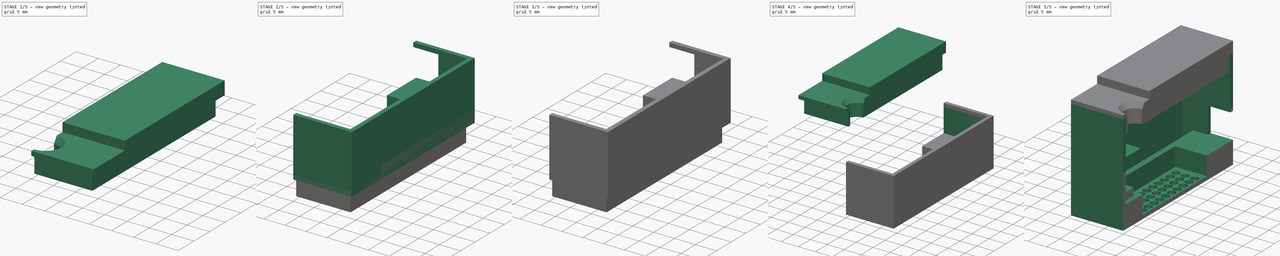
[diagram: build sequence overview — one tinted view per stage of 5, left to right]
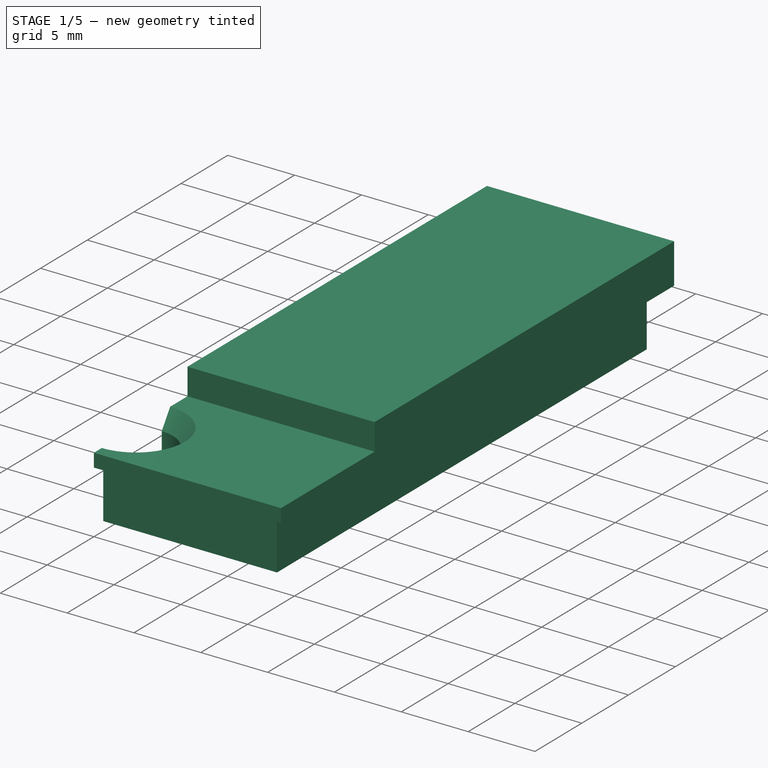
[diagram: stage 1 of 5 — iso view after this stage's code; geometry added in this stage tinted green]
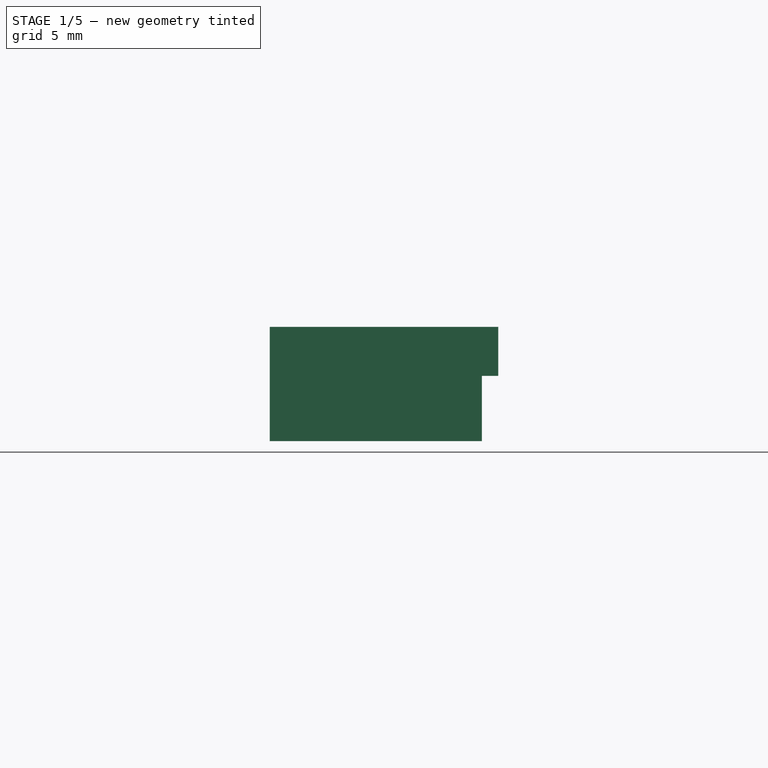
[diagram: stage 1 of 5 — front view after this stage's code; geometry added in this stage tinted green]
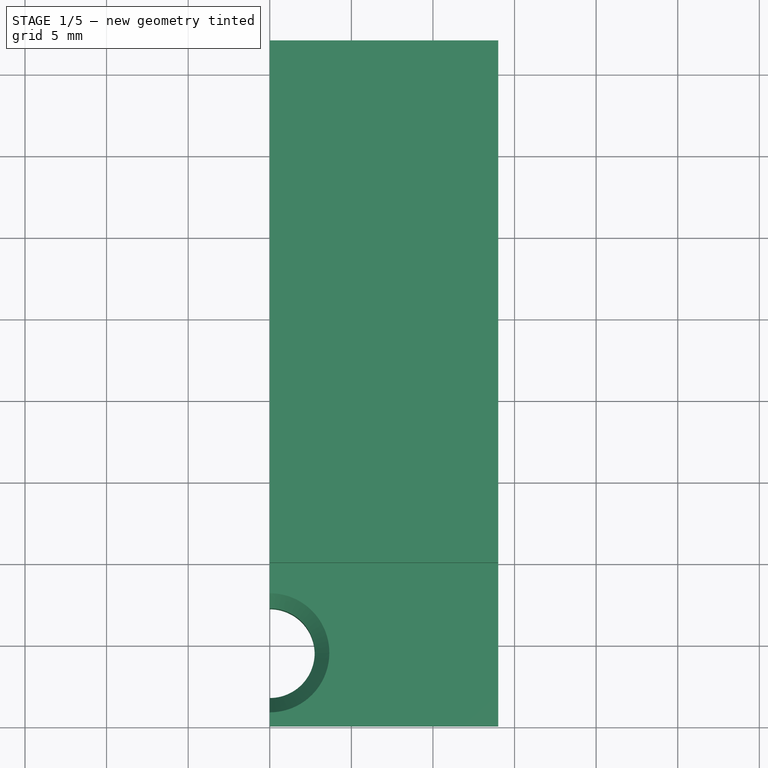
[diagram: stage 1 of 5 — top view after this stage's code; geometry added in this stage tinted green]
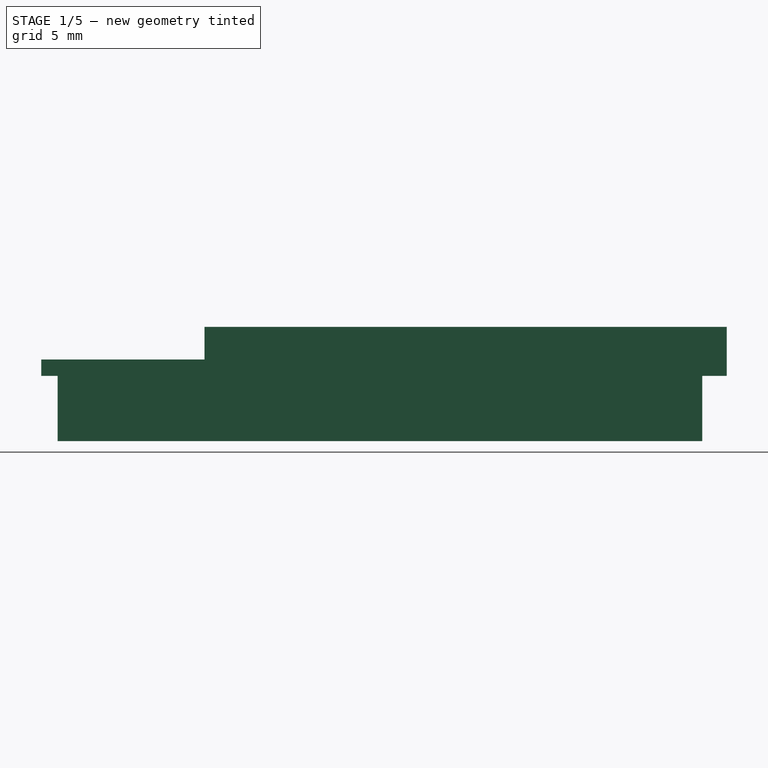
[diagram: stage 1 of 5 — right view after this stage's code; geometry added in this stage tinted green]
FCSTD DOCUMENT  (FreeCAD 0.19R24291 (Git))
Label: ir_box_v2
License: All rights reserved
LicenseURL: http://en.wikipedia.org/wiki/All_rights_reserved
objects: Sketcher::SketchObject×15, PartDesign::Pad×8, PartDesign::Pocket×6, PartDesign::Body×3, Part::Mirroring×3, PartDesign::LinearPattern×2, PartDesign::MultiTransform×1, PartDesign::Hole×1
note: 54 computed .brp shape members not serialized (recipe doc carries the construction recipe); baked Part::Feature solids carry a one-line shape summary decoded from their .brp

FEATURE [Sketcher::SketchObject] Sketch013
  FullyConstrained = true
  MapMode = 5
  Support = -> [XY_Plane002]
  sketch-geometry (4):
    g0: LineSegment StartX=0 StartY=0 StartZ=0 EndX=14 EndY=0 EndZ=0
    g1: LineSegment StartX=14 StartY=0 StartZ=0 EndX=14 EndY=42 EndZ=0
    g2: LineSegment StartX=14 StartY=42 StartZ=0 EndX=0 EndY=42 EndZ=0
    g3: LineSegment StartX=0 StartY=42 StartZ=0 EndX=0 EndY=0 EndZ=0
  constraints (11):
    c: Coincident(g0,g1)
    c: Coincident(g1,g2)
    c: Coincident(g2,g3)
    c: Coincident(g3,g0)
    c: Horizontal(g0)
    c: Horizontal(g2)
    c: Vertical(g1)
    c: Vertical(g3)
    c: Coincident(g0,g-1)
    c: Distance(g2) = 14
    c: Distance(g1) = 42
FEATURE [PartDesign::Pad] Pad007
  Direction = (1,1,1)
  Length = 1
  Length2 = 100
  Profile = -> Sketch013
  Type = 0
FEATURE [Sketcher::SketchObject] Sketch014
  ExternalGeometry = -> [Pad007]
  FullyConstrained = true
  MapMode = 5
  Placement = pos=(0,0,0) rot=(1,0,0;3.14159rad)
  Support = -> [Pad007]
  sketch-geometry (4):
    g0: LineSegment StartX=0 StartY=-1 StartZ=0 EndX=13 EndY=-1 EndZ=0
    g1: LineSegment StartX=13 StartY=-1 StartZ=0 EndX=13 EndY=-40.5 EndZ=0
    g2: LineSegment StartX=13 StartY=-40.5 StartZ=0 EndX=0 EndY=-40.5 EndZ=0
    g3: LineSegment StartX=0 StartY=-40.5 StartZ=0 EndX=0 EndY=-1 EndZ=0
  constraints (12):
    c: Coincident(g0,g1)
    c: Coincident(g1,g2)
    c: Coincident(g2,g3)
    c: Coincident(g3,g0)
    c: Horizontal(g0)
    c: Horizontal(g2)
    c: Vertical(g1)
    c: Vertical(g3)
    c: PointOnObject(g0,g-2)
    c: Distance(g-1,g0) = 1
    c: Distance(g-4,g2) = 1.5
    c: Distance(g0,g-3) = 1
FEATURE [PartDesign::Pad] Pad008
  BaseFeature = -> Pad007
  Direction = (1,1,1)
  Length = 4
  Length2 = 100
  Profile = -> Sketch014
  Type = 0
FEATURE [Sketcher::SketchObject] Sketch015
  FullyConstrained = true
  MapMode = 5
  Placement = pos=(0,0,1) rot=(0,0,1;0rad)
  Support = -> [Pad008]
  expr: Constraints[1] = 2 + 5 / 2
  sketch-geometry (1):
    g0: Circle CenterX=0 CenterY=4.5 CenterZ=0 NormalX=0 NormalY=0 NormalZ=1 AngleXU=0 Radius=2.5
  constraints (3):
    c: PointOnObject(g0,g-2)
    c: Distance(g-1,g0) = 4.5
    c: Diameter(g0) = 5
FEATURE [PartDesign::Hole] Hole
  BaseFeature = -> Pad008
  Depth = 25
  DepthType = 0
  Diameter = 5.5
  DrillForDepth = false
  DrillPoint = 1
  DrillPointAngle = 30
  HoleCutCountersinkAngle = 69
  HoleCutCustomValues = true
  HoleCutDepth = 2.5
  HoleCutDiameter = 7.3
  HoleCutType = 8
  ModelActualThread = false
  Profile = -> Sketch015
  Tapered = false
  TaperedAngle = 90
  ThreadAngle = 0
  ThreadClass = 0
  ThreadCutOffInner = 0
  ThreadCutOffOuter = 0
  ThreadDirection = 0
  ThreadFit = 0
  ThreadPitch = 0
  ThreadSize = 13
  ThreadType = 1
  Threaded = false
FEATURE [Sketcher::SketchObject] Sketch017
  ExternalGeometry = -> [Hole]
  FullyConstrained = true
  MapMode = 5
  Placement = pos=(0,0,1) rot=(0,0,1;0rad)
  Support = -> [Hole]
  sketch-geometry (4):
    g0: LineSegment StartX=0 StartY=42 StartZ=0 EndX=14 EndY=42 EndZ=0
    g1: LineSegment StartX=14 StartY=42 StartZ=0 EndX=14 EndY=10 EndZ=0
    g2: LineSegment StartX=14 StartY=10 StartZ=0 EndX=0 EndY=10 EndZ=0
    g3: LineSegment StartX=0 StartY=10 StartZ=0 EndX=0 EndY=42 EndZ=0
  constraints (10):
    c: Coincident(g0,g1)
    c: Coincident(g1,g2)
    c: Coincident(g2,g3)
    c: Coincident(g3,g0)
    c: Horizontal(g2)
    c: Vertical(g1)
    c: Vertical(g3)
    c: Coincident(g0,g-3)
    c: Coincident(g-3,g0)
    c: Distance(g-1,g2) = 10
FEATURE [PartDesign::Pad] Pad009
  BaseFeature = -> Hole
  Direction = (1,1,1)
  Length = 2
  Length2 = 100
  Profile = -> Sketch017
  Type = 0
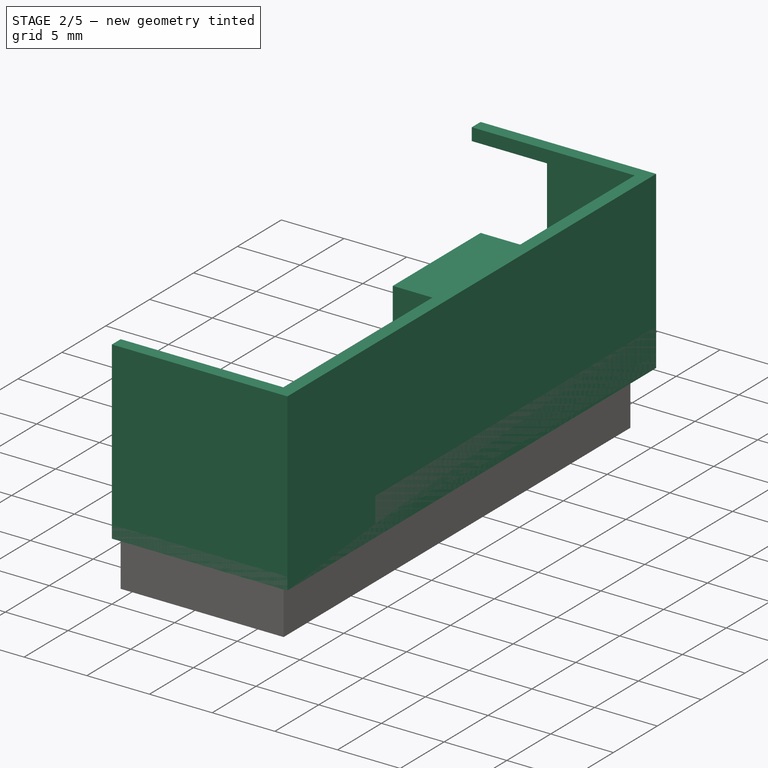
[diagram: stage 2 of 5 — iso view after this stage's code; geometry added in this stage tinted green]
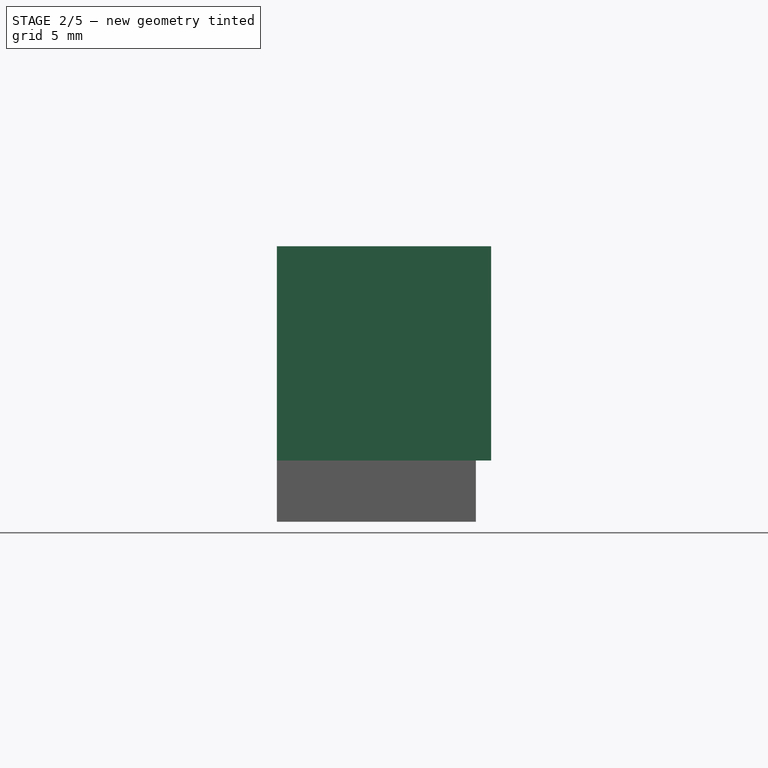
[diagram: stage 2 of 5 — front view after this stage's code; geometry added in this stage tinted green]
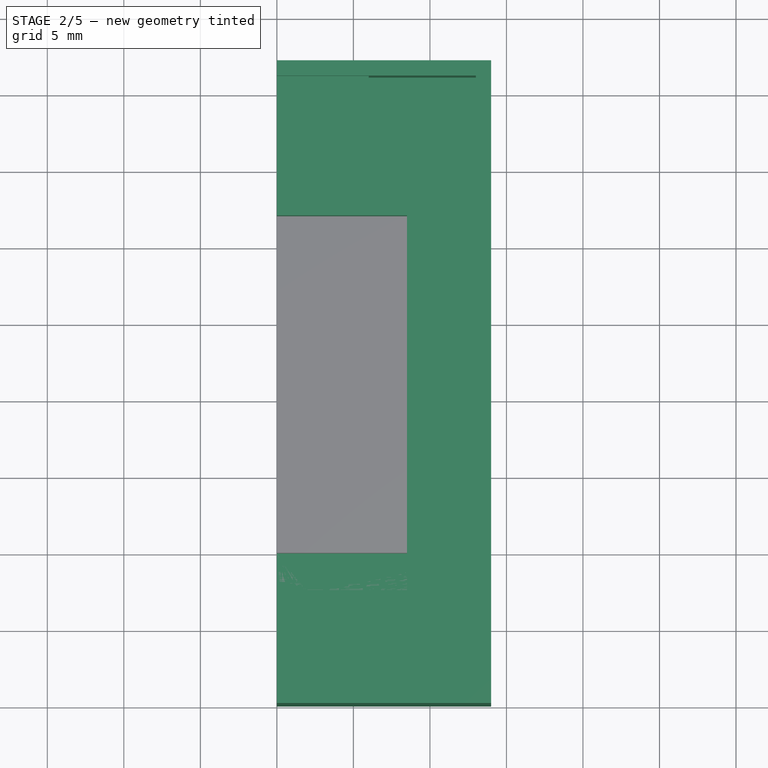
[diagram: stage 2 of 5 — top view after this stage's code; geometry added in this stage tinted green]
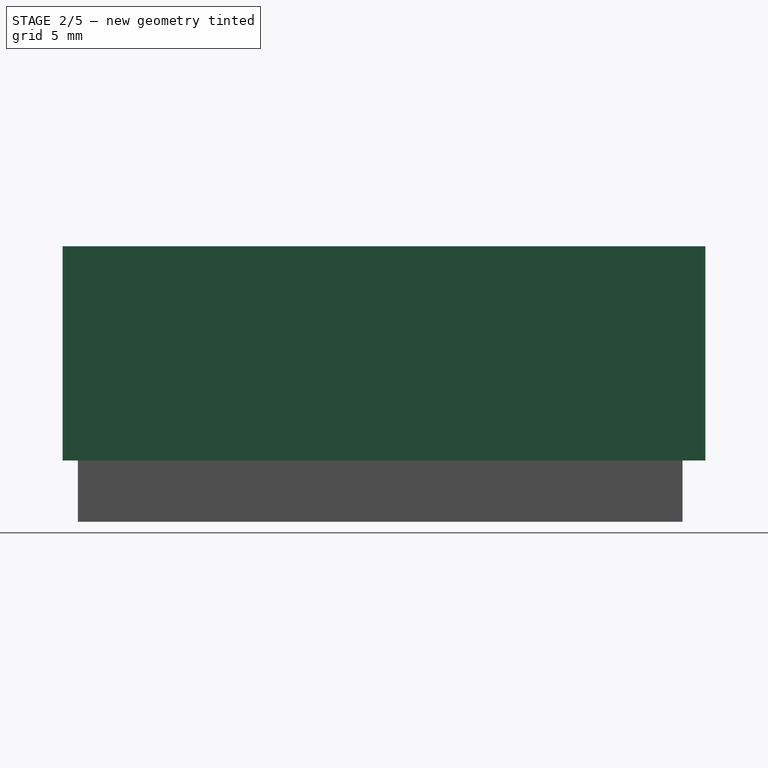
[diagram: stage 2 of 5 — right view after this stage's code; geometry added in this stage tinted green]
FEATURE [Sketcher::SketchObject] Sketch
  FullyConstrained = true
  MapMode = 5
  Support = -> [XY_Plane]
  sketch-geometry (4):
    g0: LineSegment StartX=0 StartY=42 StartZ=0 EndX=14 EndY=42 EndZ=0
    g1: LineSegment StartX=14 StartY=42 StartZ=0 EndX=14 EndY=0 EndZ=0
    g2: LineSegment StartX=14 StartY=0 StartZ=0 EndX=0 EndY=0 EndZ=0
    g3: LineSegment StartX=0 StartY=0 StartZ=0 EndX=0 EndY=42 EndZ=0
  constraints (11):
    c: Coincident(g0,g1)
    c: Coincident(g1,g2)
    c: Coincident(g2,g3)
    c: Coincident(g3,g0)
    c: Horizontal(g0)
    c: Horizontal(g2)
    c: Vertical(g1)
    c: Vertical(g3)
    c: Coincident(g-1,g2)
    c: Distance(g1) = 42
    c: Distance(g0) = 14
FEATURE [PartDesign::Pad] Pad  label="Base"
  Direction = (1,1,1)
  Length = 14
  Length2 = 100
  Profile = -> Sketch
  Type = 0
FEATURE [Sketcher::SketchObject] Sketch001
  ExternalGeometry = -> [Pad]
  FullyConstrained = true
  MapMode = 5
  Placement = pos=(0,0,14) rot=(0,0,1;0rad)
  Support = -> [Pad]
  sketch-geometry (4):
    g0: LineSegment StartX=0 StartY=41 StartZ=0 EndX=13 EndY=41 EndZ=0
    g1: LineSegment StartX=13 StartY=41 StartZ=0 EndX=13 EndY=1 EndZ=0
    g2: LineSegment StartX=13 StartY=1 StartZ=0 EndX=0 EndY=1 EndZ=0
    g3: LineSegment StartX=0 StartY=1 StartZ=0 EndX=0 EndY=41 EndZ=0
  constraints (11):
    c: Coincident(g0,g1)
    c: Coincident(g1,g2)
    c: Coincident(g2,g3)
    c: Coincident(g3,g0)
    c: Horizontal(g0)
    c: Horizontal(g2)
    c: Vertical(g1)
    c: Tangent(g-2,g3)
    c: Distance(g-1,g2) = 1
    c: Distance(g-4,g0) = 1
    c: Distance(g0,g-3) = 1
FEATURE [PartDesign::Pocket] Pocket  label="Wemos Pouch"
  BaseFeature = -> Pad
  Length = 8
  Length2 = 100
  Profile = -> Sketch001
  Type = 0
FEATURE [Sketcher::SketchObject] Sketch002
  ExternalGeometry = -> [Pocket]
  FullyConstrained = true
  MapMode = 5
  Placement = pos=(0,0,6) rot=(0,0,1;0rad)
  Support = -> [Pocket]
  sketch-geometry (4):
    g0: LineSegment StartX=0 StartY=32 StartZ=0 EndX=8.5 EndY=32 EndZ=0
    g1: LineSegment StartX=8.5 StartY=32 StartZ=0 EndX=8.5 EndY=7.5 EndZ=0
    g2: LineSegment StartX=8.5 StartY=7.5 StartZ=0 EndX=0 EndY=7.5 EndZ=0
    g3: LineSegment StartX=0 StartY=7.5 StartZ=0 EndX=0 EndY=32 EndZ=0
  constraints (12):
    c: Coincident(g0,g1)
    c: Coincident(g1,g2)
    c: Coincident(g2,g3)
    c: Coincident(g3,g0)
    c: Horizontal(g0)
    c: Horizontal(g2)
    c: Vertical(g1)
    c: Vertical(g3)
    c: PointOnObject(g0,g-2)
    c: Distance(g0) = 8.5
    c: Distance(g0,g-3) = 10
    c: Distance(g1) = 24.5
FEATURE [PartDesign::Pocket] Pocket001  label="Chip Pouch"
  BaseFeature = -> Pocket
  Length = 5
  Length2 = 100
  Profile = -> Sketch002
  Type = 0
FEATURE [Sketcher::SketchObject] Sketch003
  ExternalGeometry = -> [Pocket001]
  FullyConstrained = true
  MapMode = 5
  Placement = pos=(0,41,0) rot=(1,0,0;1.5708rad)
  Support = -> [Pocket001]
  sketch-geometry (4):
    g0: LineSegment StartX=0 StartY=13 StartZ=0 EndX=6 EndY=13 EndZ=0
    g1: LineSegment StartX=6 StartY=13 StartZ=0 EndX=6 EndY=6 EndZ=0
    g2: LineSegment StartX=6 StartY=6 StartZ=0 EndX=0 EndY=6 EndZ=0
    g3: LineSegment StartX=0 StartY=6 StartZ=0 EndX=0 EndY=13 EndZ=0
  constraints (11):
    c: Coincident(g0,g1)
    c: Coincident(g1,g2)
    c: Coincident(g2,g3)
    c: Coincident(g3,g0)
    c: Horizontal(g0)
    c: Horizontal(g2)
    c: Vertical(g1)
    c: Vertical(g3)
    c: Distance(g0) = 6
    c: Distance(g1) = 7
    c: Coincident(g2,g-3)
FEATURE [PartDesign::Pocket] Pocket002  label="USB Port"
  BaseFeature = -> Pocket001
  Length = 5
  Length2 = 100
  Profile = -> Sketch003
  Type = 0
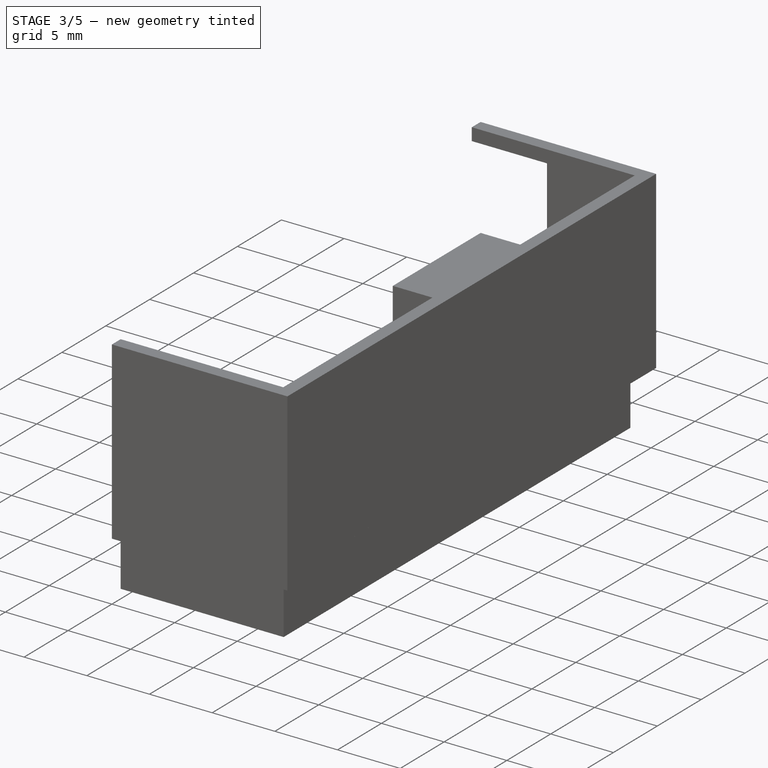
[diagram: stage 3 of 5 — iso view after this stage's code; geometry added in this stage tinted green]
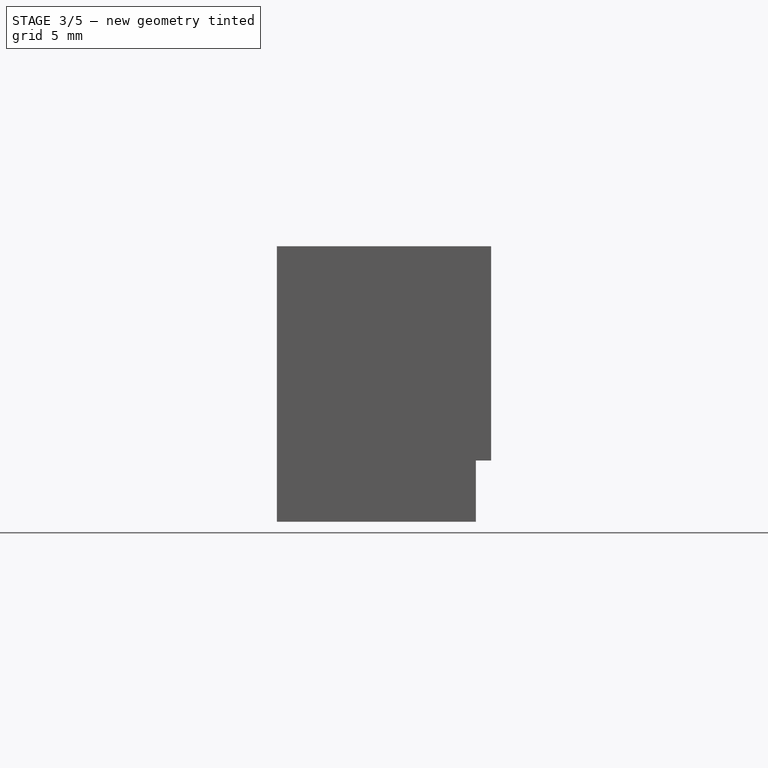
[diagram: stage 3 of 5 — front view after this stage's code; geometry added in this stage tinted green]
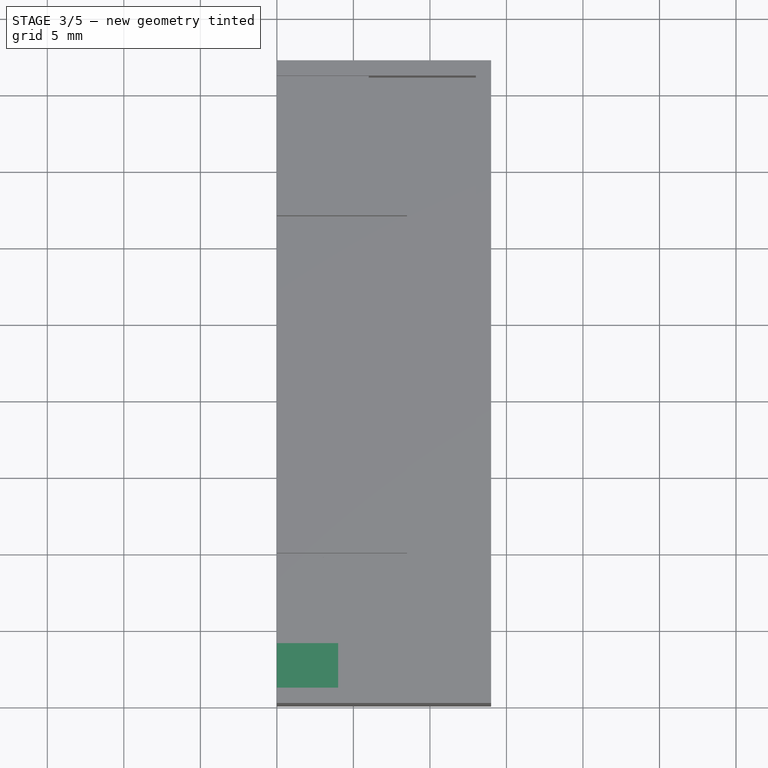
[diagram: stage 3 of 5 — top view after this stage's code; geometry added in this stage tinted green]
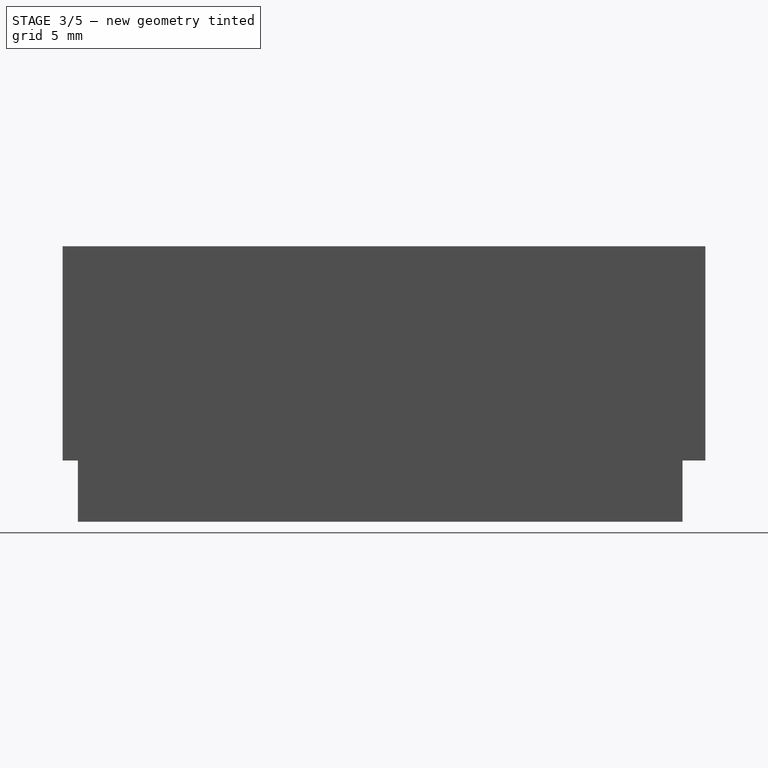
[diagram: stage 3 of 5 — right view after this stage's code; geometry added in this stage tinted green]
FEATURE [Sketcher::SketchObject] Sketch004
  ExternalGeometry = -> [Pocket002]
  FullyConstrained = false
  MapMode = 5
  Placement = pos=(0,0,1) rot=(0,0,1;0rad)
  Support = -> [Pocket002]
  sketch-geometry (1):
    g0: Circle CenterX=6.5 CenterY=9.5 CenterZ=0 NormalX=0 NormalY=0 NormalZ=1 AngleXU=0 Radius=1
  constraints (1):
    c: Diameter(g0) = 2
FEATURE [PartDesign::Pocket] Pocket003  label="Air Hole"
  BaseFeature = -> Pocket002
  Length = 5
  Length2 = 100
  Profile = -> Sketch004
  Type = 0
FEATURE [PartDesign::LinearPattern] LinearPattern
  Direction = -> Sketch004 [V_Axis]
  Length = 20
  Occurrences = 10
FEATURE [PartDesign::LinearPattern] LinearPattern001
  Direction = -> Sketch004 [H_Axis]
  Length = 5
  Occurrences = 3
  Reversed = true
FEATURE [PartDesign::MultiTransform] MultiTransform
  BaseFeature = -> Pocket003
  Originals = -> [Pocket003]
  Transformations = -> [LinearPattern,LinearPattern001]
FEATURE [Sketcher::SketchObject] Sketch007
  ExternalGeometry = -> [MultiTransform]
  FullyConstrained = false
  MapMode = 5
  Placement = pos=(0,1,0) rot=(0,0.707107,0.707107;3.14159rad)
  sketch-geometry (4):
    g0: LineSegment StartX=-4 StartY=9 StartZ=0 EndX=0 EndY=9 EndZ=0
    g1: LineSegment StartX=0 StartY=9 StartZ=0 EndX=0 EndY=7 EndZ=0
    g2: LineSegment StartX=0 StartY=7 StartZ=0 EndX=-4 EndY=7 EndZ=0
    g3: LineSegment StartX=-4 StartY=7 StartZ=0 EndX=-4 EndY=9 EndZ=0
  constraints (10):
    c: Coincident(g0,g1)
    c: Coincident(g1,g2)
    c: Coincident(g2,g3)
    c: Coincident(g3,g0)
    c: Horizontal(g0)
    c: Horizontal(g2)
    c: Vertical(g3)
    c: Tangent(g1,g-2)
    c: Distance(g0) = 4
    c: Distance(g3) = 2
FEATURE [PartDesign::Pad] Pad001  label="Security Flap"
  BaseFeature = -> MultiTransform
  Direction = (1,1,1)
  Length = 3
  Length2 = 100
  Profile = -> Sketch007
  Type = 0
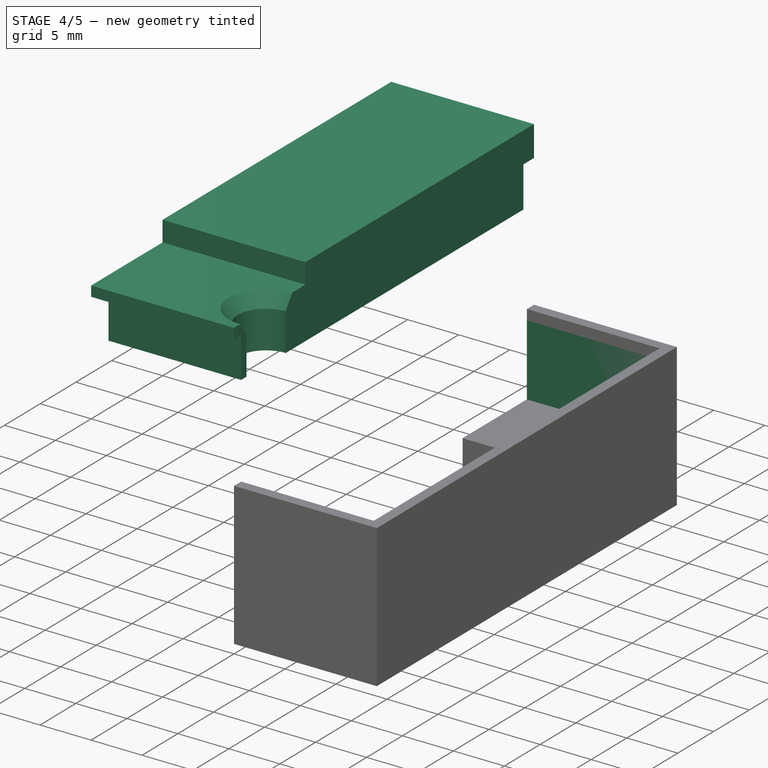
[diagram: stage 4 of 5 — iso view after this stage's code; geometry added in this stage tinted green]
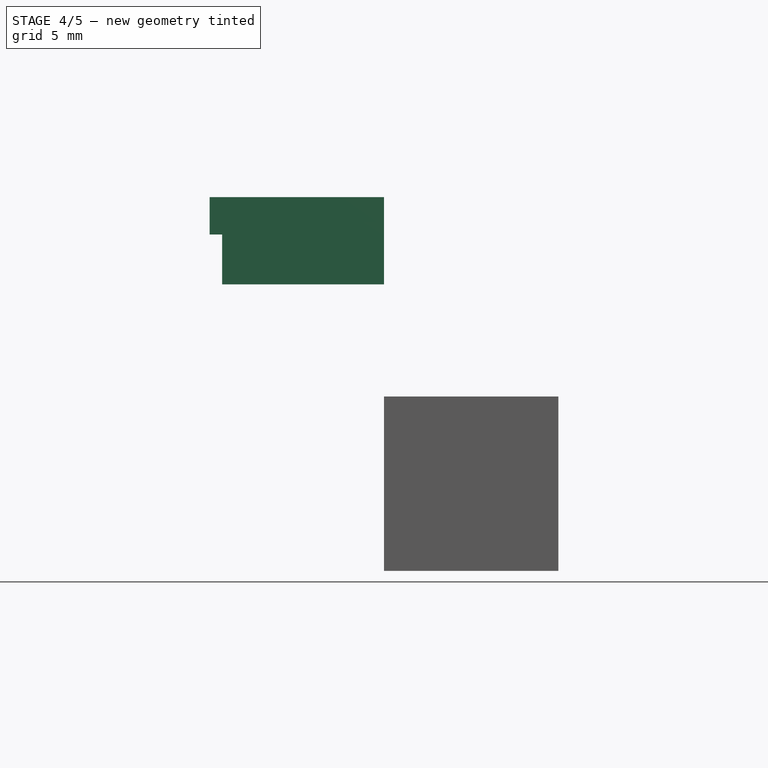
[diagram: stage 4 of 5 — front view after this stage's code; geometry added in this stage tinted green]
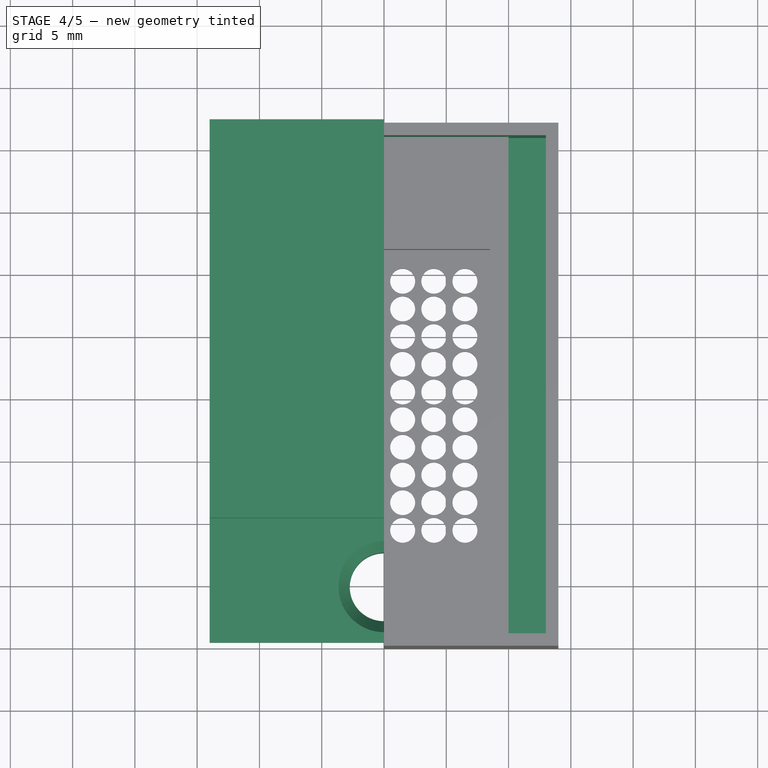
[diagram: stage 4 of 5 — top view after this stage's code; geometry added in this stage tinted green]
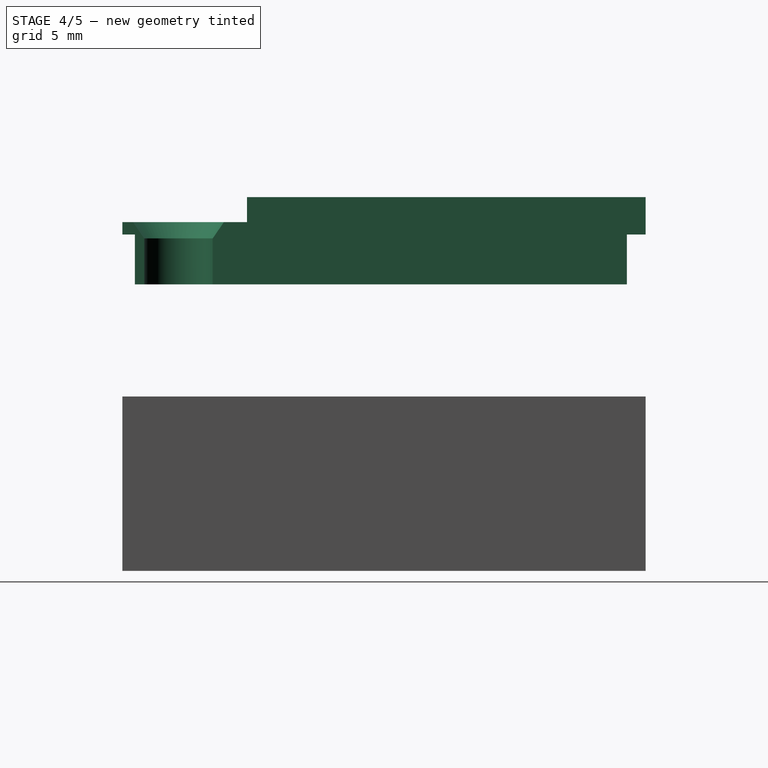
[diagram: stage 4 of 5 — right view after this stage's code; geometry added in this stage tinted green]
FEATURE [Sketcher::SketchObject] Sketch008
  FullyConstrained = true
  MapMode = 5
  Support = -> [XY_Plane001]
  sketch-geometry (4):
    g0: LineSegment StartX=0 StartY=0 StartZ=0 EndX=14 EndY=0 EndZ=0
    g1: LineSegment StartX=14 StartY=0 StartZ=0 EndX=14 EndY=42 EndZ=0
    g2: LineSegment StartX=14 StartY=42 StartZ=0 EndX=0 EndY=42 EndZ=0
    g3: LineSegment StartX=0 StartY=42 StartZ=0 EndX=0 EndY=0 EndZ=0
  constraints (11):
    c: Coincident(g0,g1)
    c: Coincident(g1,g2)
    c: Coincident(g2,g3)
    c: Coincident(g3,g0)
    c: Horizontal(g0)
    c: Horizontal(g2)
    c: Vertical(g1)
    c: Vertical(g3)
    c: Coincident(g0,g-1)
    c: Distance(g1) = 42
    c: Distance(g2) = 14
FEATURE [PartDesign::Pad] Pad002  label="Sensor Case Base"
  Direction = (1,1,1)
  Length = 13
  Length2 = 100
  Profile = -> Sketch008
  Type = 0
FEATURE [Sketcher::SketchObject] Sketch010
  ExternalGeometry = -> [Pad002]
  FullyConstrained = true
  MapMode = 5
  Placement = pos=(0,0,13) rot=(0,0,1;0rad)
  Support = -> [Pad002]
  sketch-geometry (4):
    g0: LineSegment StartX=0 StartY=41 StartZ=0 EndX=13 EndY=41 EndZ=0
    g1: LineSegment StartX=13 StartY=41 StartZ=0 EndX=13 EndY=1 EndZ=0
    g2: LineSegment StartX=13 StartY=1 StartZ=0 EndX=0 EndY=1 EndZ=0
    g3: LineSegment StartX=0 StartY=1 StartZ=0 EndX=0 EndY=41 EndZ=0
  constraints (12):
    c: Coincident(g0,g1)
    c: Coincident(g1,g2)
    c: Coincident(g2,g3)
    c: Coincident(g3,g0)
    c: Horizontal(g0)
    c: Horizontal(g2)
    c: Vertical(g1)
    c: Vertical(g3)
    c: PointOnObject(g0,g-2)
    c: Distance(g-1,g2) = 1
    c: Distance(g0,g-3) = 1
    c: Distance(g0,g-4) = 1
FEATURE [PartDesign::Pocket] Pocket006  label="Main Pouch"
  BaseFeature = -> Pad002
  Length = 30
  Length2 = 100
  Profile = -> Sketch010
  Type = 1
FEATURE [Sketcher::SketchObject] Sketch016
  FullyConstrained = true
  MapMode = 5
  Placement = pos=(0,0,6) rot=(0,0,1;0rad)
  Support = -> [Pad001]
  sketch-geometry (4):
    g0: LineSegment StartX=10 StartY=41 StartZ=0 EndX=13 EndY=41 EndZ=0
    g1: LineSegment StartX=13 StartY=41 StartZ=0 EndX=13 EndY=1 EndZ=0
    g2: LineSegment StartX=13 StartY=1 StartZ=0 EndX=10 EndY=1 EndZ=0
    g3: LineSegment StartX=10 StartY=1 StartZ=0 EndX=10 EndY=41 EndZ=0
  constraints (12):
    c: Coincident(g0,g1)
    c: Coincident(g1,g2)
    c: Coincident(g2,g3)
    c: Coincident(g3,g0)
    c: Horizontal(g0)
    c: Horizontal(g2)
    c: Vertical(g1)
    c: Vertical(g3)
    c: Distance(g0) = 3
    c: Distance(g3) = 40
    c: DistanceY(g-1,g2) = 1
    c: DistanceX(g-2,g0) = 10
FEATURE [PartDesign::Pocket] Pocket007  label="Pin Pouch"
  BaseFeature = -> Pad001
  Length = 5
  Length2 = 100
  Profile = -> Sketch016
  Type = 0
FEATURE [PartDesign::Body] Body002  label="Lid"
  Group = -> [Sketch013,Pad007,Sketch014,Pad008,Sketch015,Hole,Sketch017,Pad009]
  Origin = -> Origin002
  Placement = pos=(0,0,27) rot=(0,0,1;0rad)
  Tip = -> Pad009
FEATURE [Part::Mirroring] Part__Mirroring002  label="Mirrored Lid"
  Base = (0,0,0)
  Normal = (1,0,0)
  Source = -> Body002
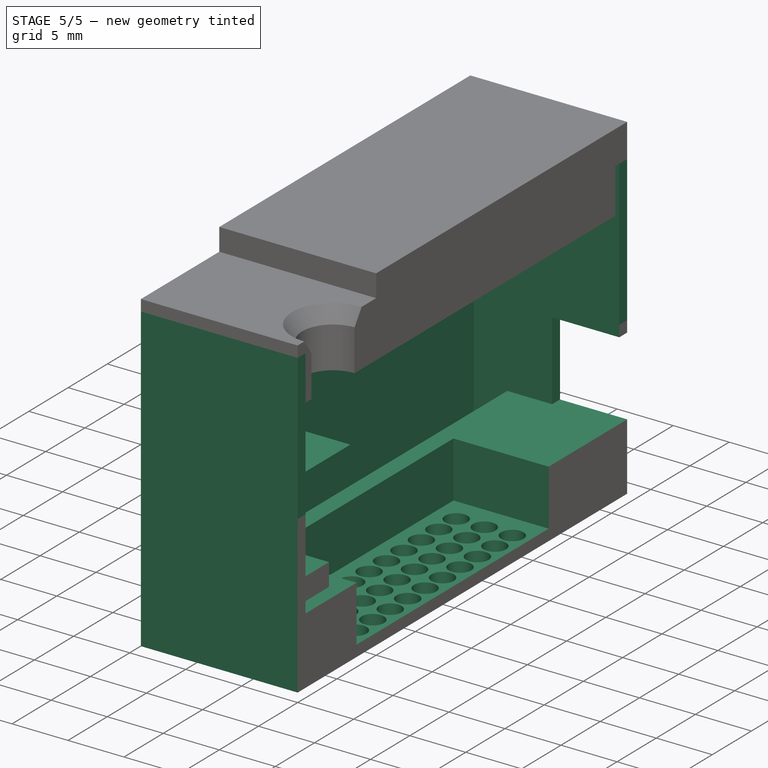
[diagram: stage 5 of 5 — iso view after this stage's code; geometry added in this stage tinted green]
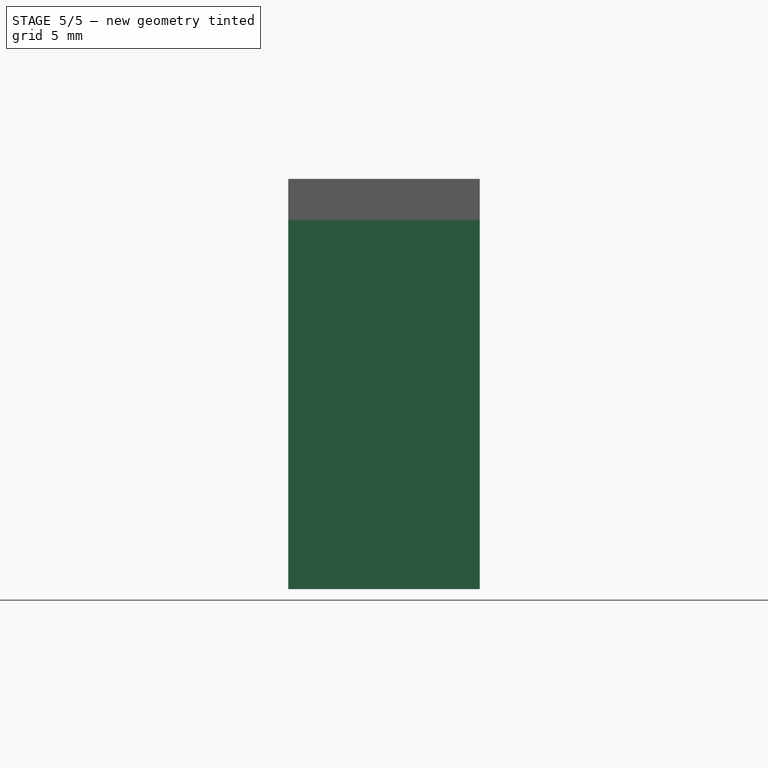
[diagram: stage 5 of 5 — front view after this stage's code; geometry added in this stage tinted green]
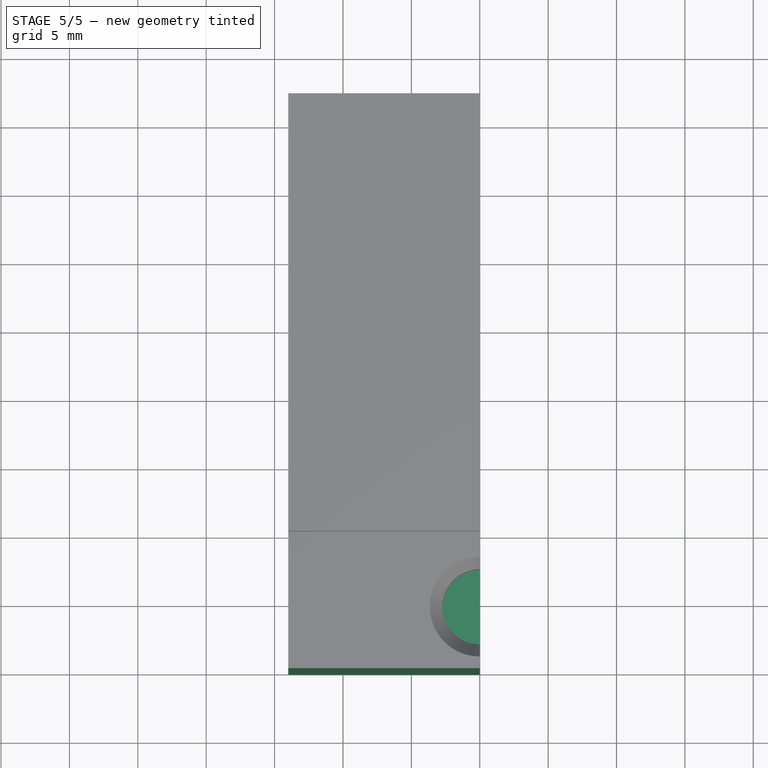
[diagram: stage 5 of 5 — top view after this stage's code; geometry added in this stage tinted green]
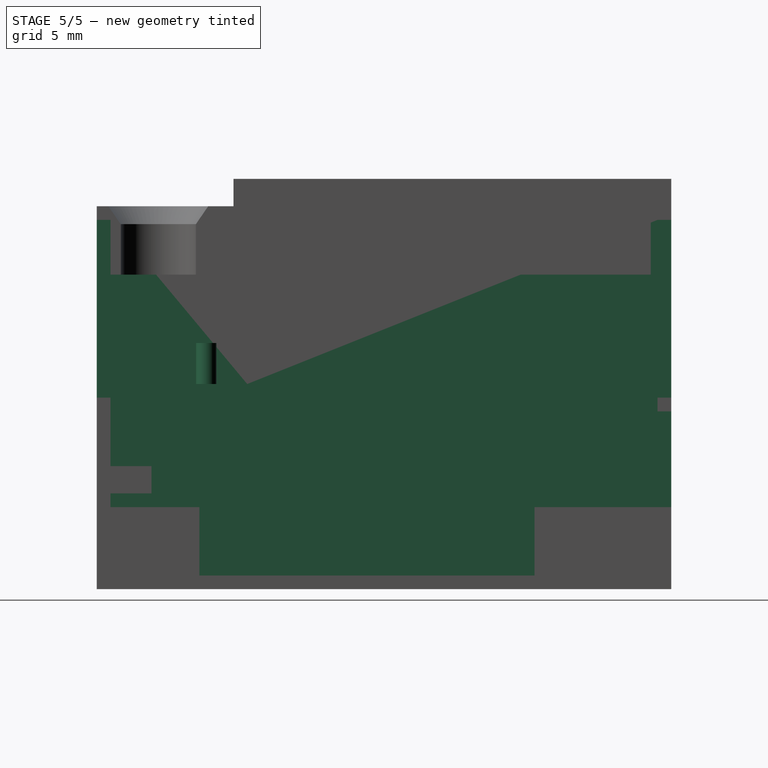
[diagram: stage 5 of 5 — right view after this stage's code; geometry added in this stage tinted green]
FEATURE [Sketcher::SketchObject] Sketch011
  FullyConstrained = false
  MapMode = 5
  Placement = pos=(0,1,0) rot=(0,0.707107,0.707107;3.14159rad)
  sketch-geometry (4):
    g0: LineSegment StartX=-13 StartY=1 StartZ=0 EndX=-3 EndY=1 EndZ=0
    g1: LineSegment StartX=-3 StartY=1 StartZ=0 EndX=-3 EndY=0 EndZ=0
    g2: LineSegment StartX=-3 StartY=0 StartZ=0 EndX=-13 EndY=0 EndZ=0
    g3: LineSegment StartX=-13 StartY=0 StartZ=0 EndX=-13 EndY=1 EndZ=0
  constraints (10):
    c: Coincident(g0,g1)
    c: Coincident(g1,g2)
    c: Coincident(g2,g3)
    c: Coincident(g3,g0)
    c: Horizontal(g0)
    c: Horizontal(g2)
    c: Vertical(g1)
    c: Vertical(g3)
    c: Distance(g1) = 1
    c: Distance(g0) = 10
FEATURE [PartDesign::Pad] Pad004  label="Sensor Base"
  BaseFeature = -> Pocket006
  Direction = (1,1,1)
  Length = 10
  Length2 = 100
  Profile = -> Sketch011
  Type = 0
FEATURE [Sketcher::SketchObject] Sketch012
  ExternalGeometry = -> [Pad004]
  FullyConstrained = true
  MapMode = 5
  Placement = pos=(0,2e-16,1) rot=(0,0,1;0rad)
  Support = -> [Pad004]
  expr: Constraints[4] = 17 / 2 + 2 / 2
  sketch-geometry (2):
    g0: Circle CenterX=9.5 CenterY=8 CenterZ=0 NormalX=0 NormalY=0 NormalZ=1 AngleXU=0 Radius=0.75
    g1: LineSegment StartX=9.5 StartY=8 StartZ=0 EndX=9.5 EndY=0 EndZ=0
  constraints (6):
    c: Diameter(g0) = 1.5
    c: Coincident(g1,g0)
    c: Vertical(g1)
    c: Distance(g1) = 8
    c: DistanceX(g-2,g0) = 9.5
    c: PointOnObject(g1,g-1)
FEATURE [PartDesign::Pad] Pad005  label="Sensor Security Pin"
  BaseFeature = -> Pad004
  Direction = (1,1,1)
  Length = 3
  Length2 = 100
  Profile = -> Sketch012
  Type = 0
FEATURE [PartDesign::Body] Body001  label="Sensor Case"
  Group = -> [Sketch008,Pad002,Sketch010,Pocket006,Sketch011,Pad004,Pad005,Sketch012]
  Origin = -> Origin001
  Placement = pos=(0,0,14) rot=(0,0,1;0rad)
  Tip = -> Pad005
FEATURE [Part::Mirroring] Part__Mirroring001  label="Mirrored Sensor Case"
  Base = (0,0,0)
  Normal = (1,0,0)
  Source = -> Body001
FEATURE [PartDesign::Body] Body  label="Wemos Case"
  Group = -> [Sketch,Pad,Sketch001,Pocket,Sketch002,Pocket001,Sketch003,Pocket002,Sketch004,Pocket003,MultiTransform,LinearPattern,LinearPattern001,Sketch007,Pad001,Sketch016,Pocket007]
  Origin = -> Origin
  Tip = -> Pocket007
FEATURE [Part::Mirroring] Part__Mirroring  label="Mirrored Wemos Case"
  Base = (0,0,0)
  Normal = (1,0,0)
  Source = -> Body
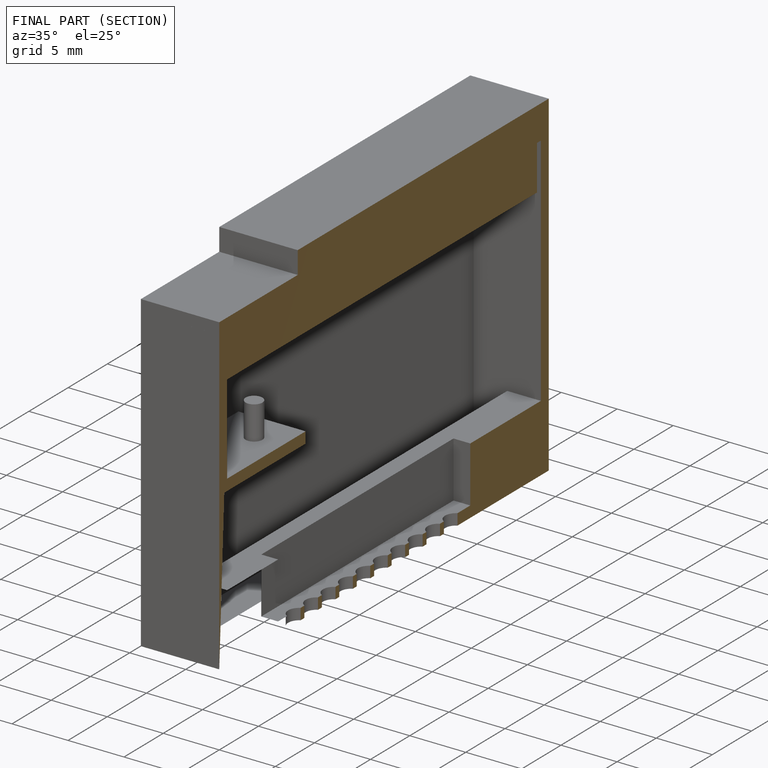
[diagram: finished part — half-section view (interior)]
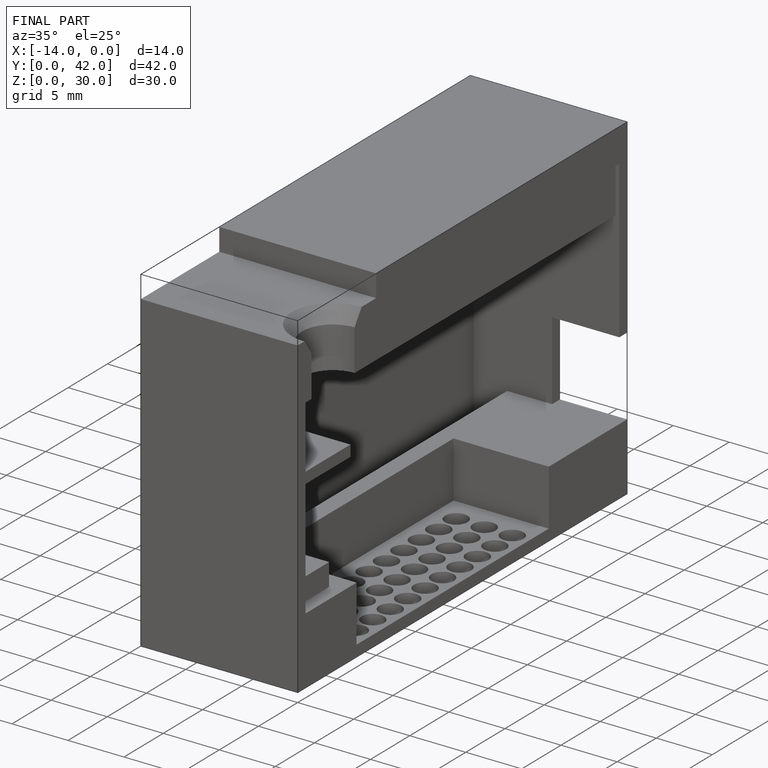
[diagram: finished part — iso view with bounding-box wireframe]
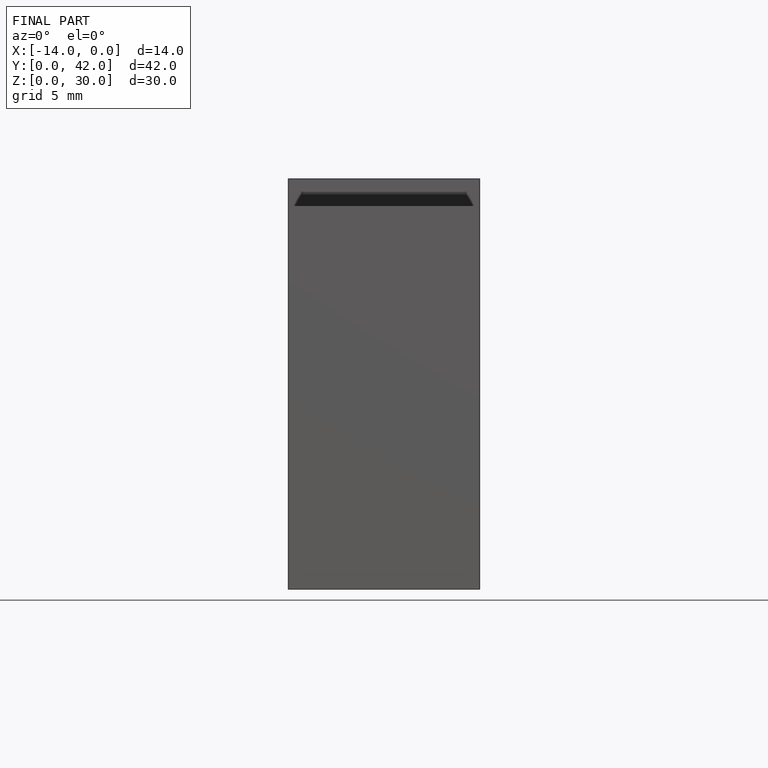
[diagram: finished part — front view with bounding-box wireframe]
